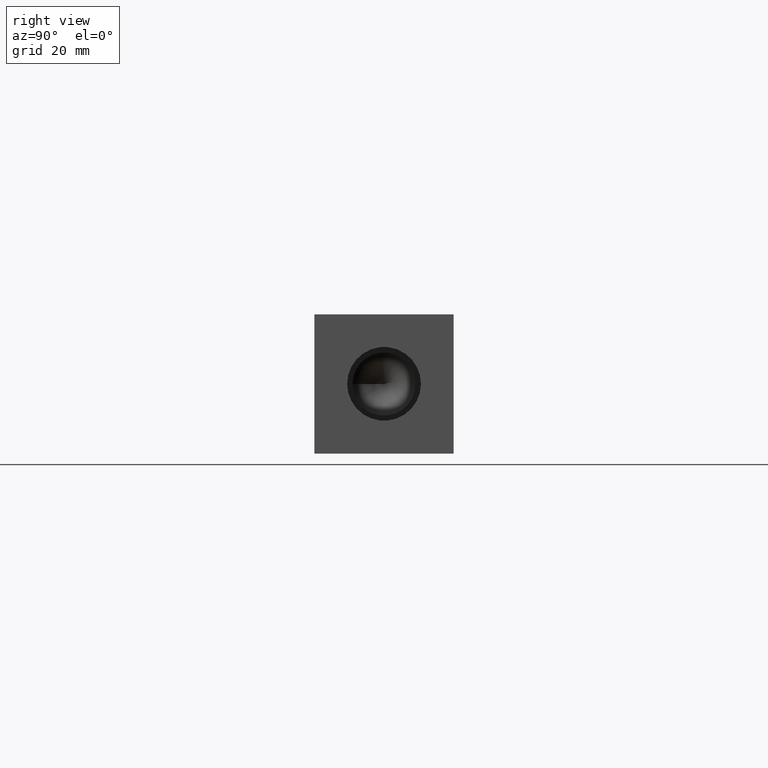
[diagram: clean part render]
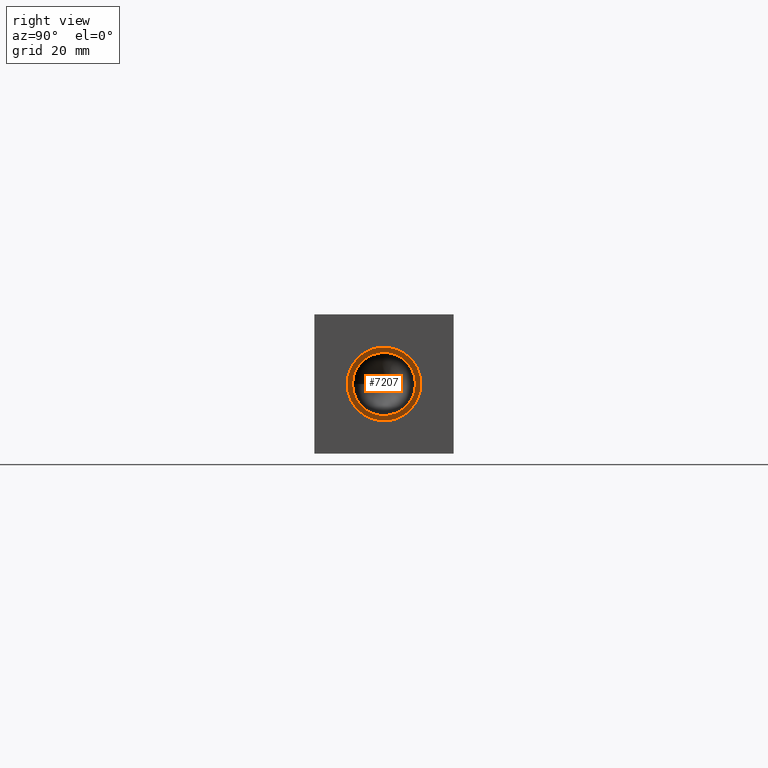
[diagram: same view with one face highlighted and labeled with its STEP entity id]
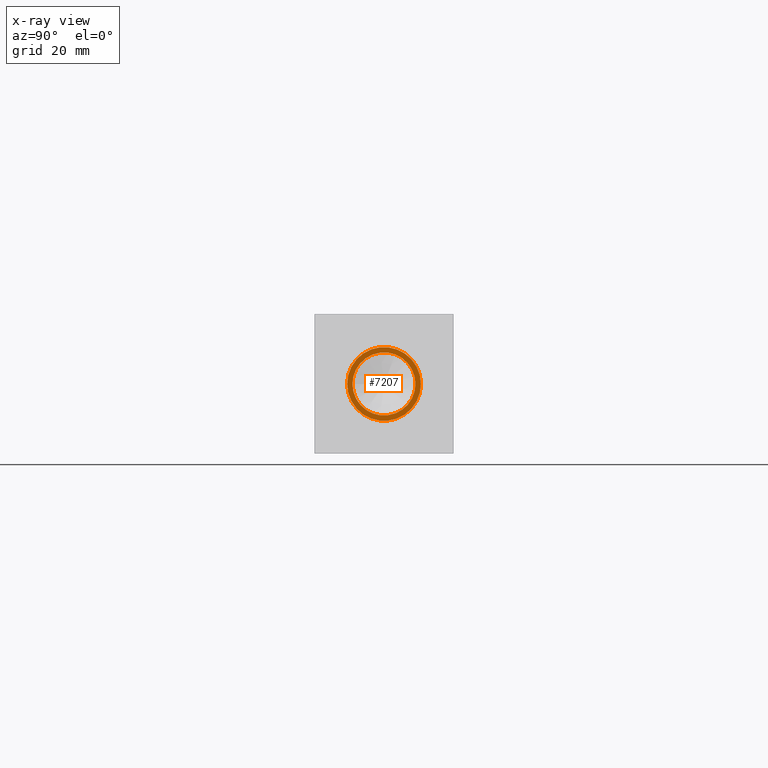
[diagram: x-ray of the same camera — body ghosted, the highlighted face saturated]
A machine part, right view. The second image highlights one B-rep face of the part: STEP entity #7207.
The next image is the same camera in x-ray: the body ghosted, the highlighted face saturated — about 0% of this face is hidden behind the body in this view.
In plain terms, the highlighted planar face has unit normal (1, 0, 0).
Its self-contained STEP definition (entity closure, byte-faithful):
#134=CIRCLE('',#7568,13.462);
#135=CIRCLE('',#7569,13.462);
#136=CIRCLE('',#7570,11.5062);
#191=FACE_BOUND('',#1196,.T.);
#423=PLANE('',#7567);
#784=FACE_OUTER_BOUND('',#1195,.T.);
#1195=EDGE_LOOP('',(#6376,#6377));
#1196=EDGE_LOOP('',(#6378));
#3461=VERTEX_POINT('',#12299);
#3462=VERTEX_POINT('',#12300);
#3463=VERTEX_POINT('',#12303);
#4444=EDGE_CURVE('',#3461,#3462,#134,.T.);
#4445=EDGE_CURVE('',#3462,#3461,#135,.T.);
#4446=EDGE_CURVE('',#3463,#3463,#136,.T.);
#6376=ORIENTED_EDGE('',*,*,#4444,.T.);
#6377=ORIENTED_EDGE('',*,*,#4445,.T.);
#6378=ORIENTED_EDGE('',*,*,#4446,.F.);
#7207=ADVANCED_FACE('',(#784,#191),#423,.T.);
#7567=AXIS2_PLACEMENT_3D('',#12298,#8940,#8941);
#7568=AXIS2_PLACEMENT_3D('',#12301,#8942,#8943);
#7569=AXIS2_PLACEMENT_3D('',#12302,#8944,#8945);
#7570=AXIS2_PLACEMENT_3D('',#12304,#8946,#8947);
#8940=DIRECTION('center_axis',(1.,0.,0.));
#8941=DIRECTION('ref_axis',(0.,1.,0.));
#8942=DIRECTION('center_axis',(1.,0.,0.));
#8943=DIRECTION('ref_axis',(0.,1.,0.));
#8944=DIRECTION('center_axis',(1.,0.,0.));
#8945=DIRECTION('ref_axis',(0.,1.,0.));
#8946=DIRECTION('center_axis',(1.,0.,0.));
#8947=DIRECTION('ref_axis',(0.,1.,0.));
#12298=CARTESIAN_POINT('Origin',(241.3254,25.4,25.4));
#12299=CARTESIAN_POINT('',(241.3254,38.862,25.4));
#12300=CARTESIAN_POINT('',(241.3254,11.938,25.4));
#12301=CARTESIAN_POINT('Origin',(241.3254,25.4,25.4));
#12302=CARTESIAN_POINT('Origin',(241.3254,25.4,25.4));
#12303=CARTESIAN_POINT('',(241.3254,13.8938,25.4));
#12304=CARTESIAN_POINT('Origin',(241.3254,25.4,25.4));